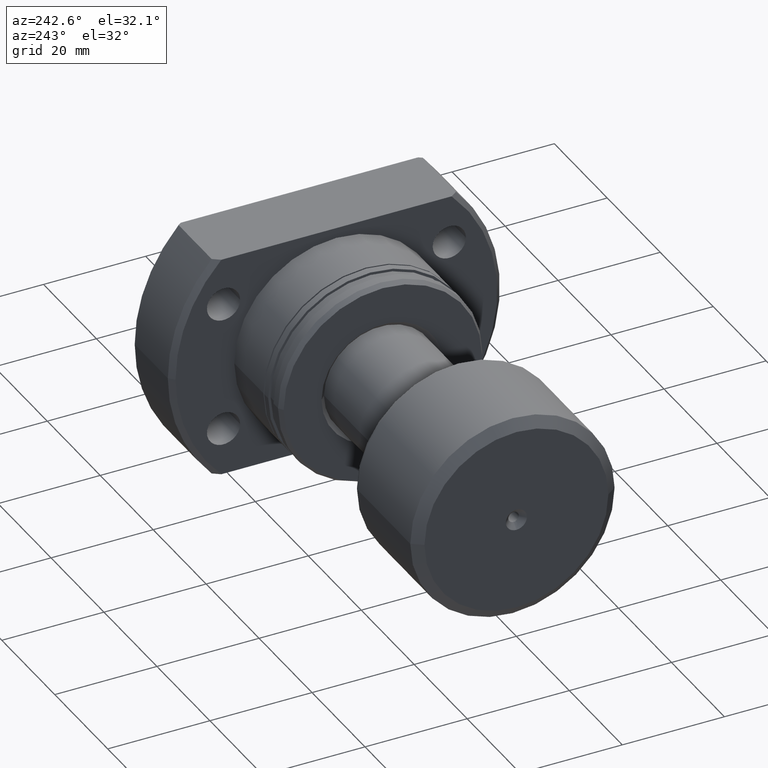
[diagram: clean part render]
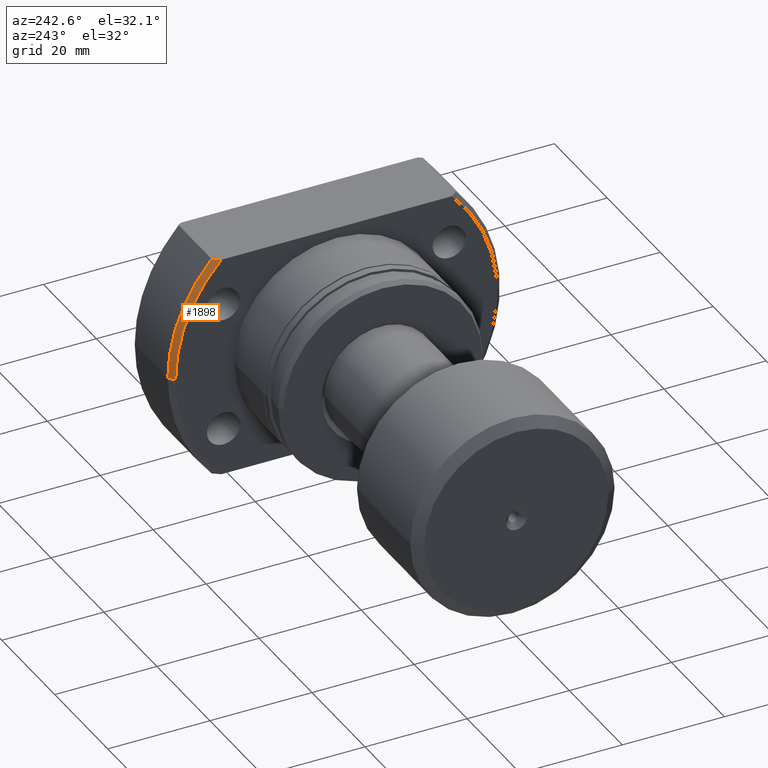
[diagram: same view with one face highlighted and labeled with its STEP entity id]
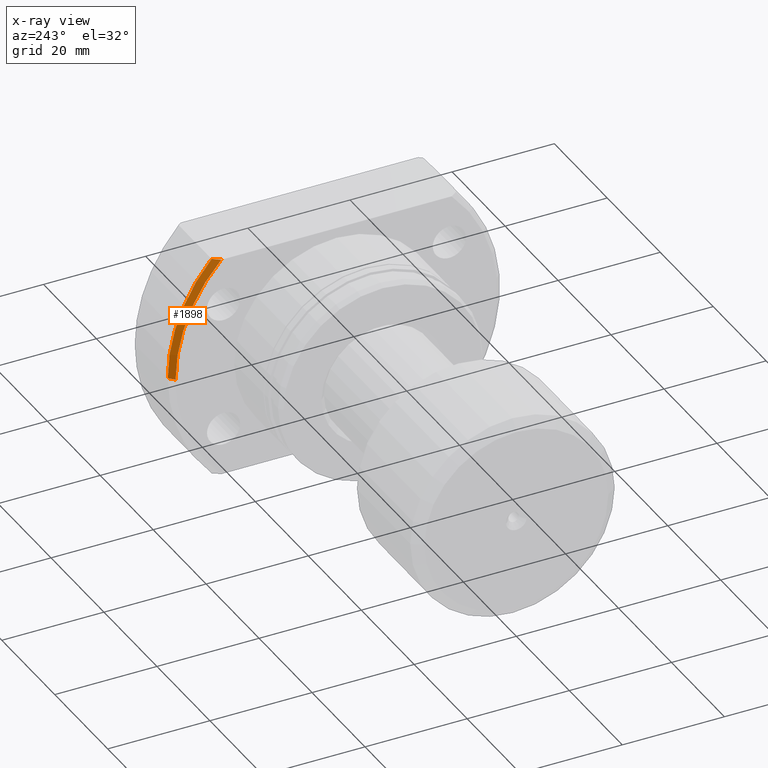
[diagram: x-ray of the same camera — body ghosted, the highlighted face saturated]
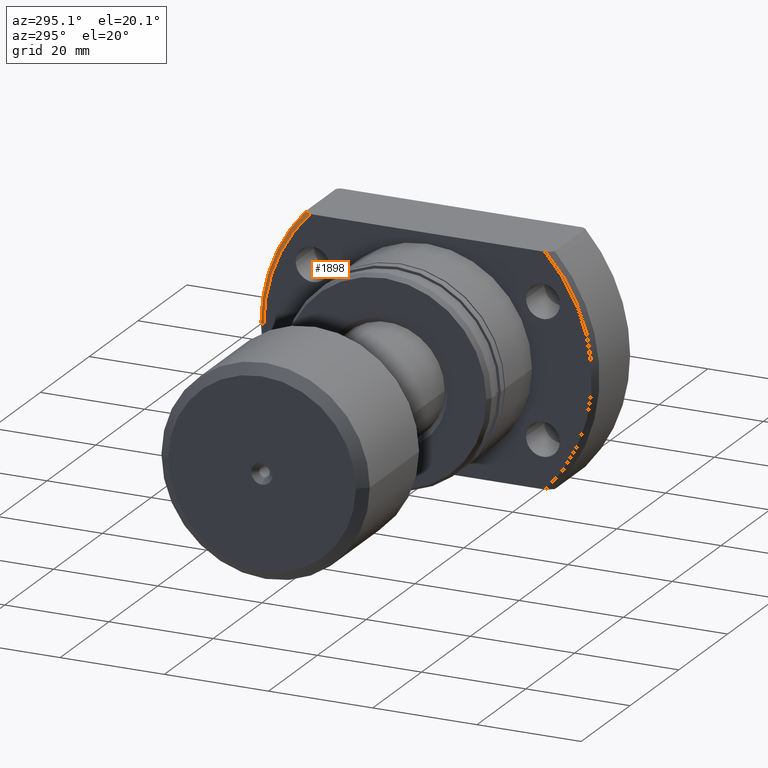
[diagram: same view with one face highlighted and labeled with its STEP entity id]
A machine part, auxiliary view. The second image highlights one B-rep face of the part: STEP entity #1898.
The next image is the same camera in x-ray: the body ghosted, the highlighted face saturated — about 0% of this face is hidden behind the body in this view.
A second angle (auxiliary view) of the same face is appended — the face is thin or edge-on in the first view.
In plain terms, the highlighted conical surface has half-angle 45 deg.
Its self-contained STEP definition (entity closure, byte-faithful):
#19 = ORIENTED_EDGE ( 'NONE', *, *, #2743, .T. ) ;
#22 = LINE ( 'NONE', #1167, #2635 ) ;
#70 = VERTEX_POINT ( 'NONE', #2284 ) ;
#239 = DIRECTION ( 'NONE',  ( 1.000000000000000000, 2.721437331438560389E-17, -0.000000000000000000 ) ) ;
#278 = CARTESIAN_POINT ( 'NONE',  ( 17.83023180395318263, 23.00581462409452982, 22.00000000000000355 ) ) ;
#291 = CARTESIAN_POINT ( 'NONE',  ( 17.50000000000000355, 22.54440063519089676, 22.00000000000000355 ) ) ;
#306 = CARTESIAN_POINT ( 'NONE',  ( 18.16368991444090497, 23.46483775540317041, 22.00000000000000355 ) ) ;
#440 = CONICAL_SURFACE ( 'NONE', #2867, 31.49999999999993250, 0.7853981633974466137 ) ;
#468 = EDGE_CURVE ( 'NONE', #3379, #2713, #693, .T. ) ;
#487 = ORIENTED_EDGE ( 'NONE', *, *, #2302, .F. ) ;
#619 = AXIS2_PLACEMENT_3D ( 'NONE', #2813, #239, #2243 ) ;
#630 = AXIS2_PLACEMENT_3D ( 'NONE', #1739, #1148, #1441 ) ;
#649 = FACE_OUTER_BOUND ( 'NONE', #922, .T. ) ;
#693 = CIRCLE ( 'NONE', #630, 32.49999999999990763 ) ;
#884 = CARTESIAN_POINT ( 'NONE',  ( 18.49999999999998934, 23.92174742781163133, 21.99999999999998934 ) ) ;
#922 = EDGE_LOOP ( 'NONE', ( #487, #19, #1633, #1572 ) ) ;
#924 = DIRECTION ( 'NONE',  ( 0.7071067811865487940, 0.7071067811865463515, 0.000000000000000000 ) ) ;
#956 = CARTESIAN_POINT ( 'NONE',  ( 18.49999999999998934, 32.49999999999990763, 0.000000000000000000 ) ) ;
#1112 = CARTESIAN_POINT ( 'NONE',  ( 18.49999999999998934, 23.92174742781163133, 21.99999999999998934 ) ) ;
#1148 = DIRECTION ( 'NONE',  ( 1.000000000000000000, 2.721437331438560389E-17, -0.000000000000000000 ) ) ;
#1167 = CARTESIAN_POINT ( 'NONE',  ( 17.50000000000000355, 31.49999999999993250, 0.000000000000000000 ) ) ;
#1282 = DIRECTION ( 'NONE',  ( 1.000000000000000000, 2.721437331438560389E-17, -0.000000000000000000 ) ) ;
#1422 = CARTESIAN_POINT ( 'NONE',  ( 17.50000000000000355, 22.54440063519089676, 22.00000000000000355 ) ) ;
#1441 = DIRECTION ( 'NONE',  ( 0.000000000000000000, 1.000000000000000000, 0.000000000000000000 ) ) ;
#1572 = ORIENTED_EDGE ( 'NONE', *, *, #468, .F. ) ;
#1633 = ORIENTED_EDGE ( 'NONE', *, *, #3668, .F. ) ;
#1739 = CARTESIAN_POINT ( 'NONE',  ( 18.49999999999998934, 5.034659063161333869E-16, 0.000000000000000000 ) ) ;
#1781 = CARTESIAN_POINT ( 'NONE',  ( 17.50000000000000355, 4.762515330017481928E-16, 0.000000000000000000 ) ) ;
#1898 = ADVANCED_FACE ( 'NONE', ( #649 ), #440, .T. ) ;
#2135 = DIRECTION ( 'NONE',  ( 0.000000000000000000, 1.000000000000000000, 0.000000000000000000 ) ) ;
#2243 = DIRECTION ( 'NONE',  ( 0.000000000000000000, 1.000000000000000000, 0.000000000000000000 ) ) ;
#2284 = CARTESIAN_POINT ( 'NONE',  ( 17.50000000000000355, 31.49999999999993250, 0.000000000000000000 ) ) ;
#2302 = EDGE_CURVE ( 'NONE', #70, #3379, #22, .T. ) ;
#2635 = VECTOR ( 'NONE', #924, 1000.000000000000000 ) ;
#2713 = VERTEX_POINT ( 'NONE', #1112 ) ;
#2743 = EDGE_CURVE ( 'NONE', #70, #3678, #2999, .T. ) ;
#2813 = CARTESIAN_POINT ( 'NONE',  ( 17.50000000000000355, 4.762515330017481928E-16, 0.000000000000000000 ) ) ;
#2867 = AXIS2_PLACEMENT_3D ( 'NONE', #1781, #1282, #2135 ) ;
#2999 = CIRCLE ( 'NONE', #619, 31.49999999999993250 ) ;
#3379 = VERTEX_POINT ( 'NONE', #956 ) ;
#3635 = B_SPLINE_CURVE_WITH_KNOTS ( 'NONE', 3,
 ( #884, #306, #278, #291 ),
 .UNSPECIFIED., .F., .F.,
 ( 4, 4 ),
 ( 0.03779752499755586331, 0.03950166028446448763 ),
 .UNSPECIFIED. ) ;
#3668 = EDGE_CURVE ( 'NONE', #2713, #3678, #3635, .T. ) ;
#3678 = VERTEX_POINT ( 'NONE', #1422 ) ;